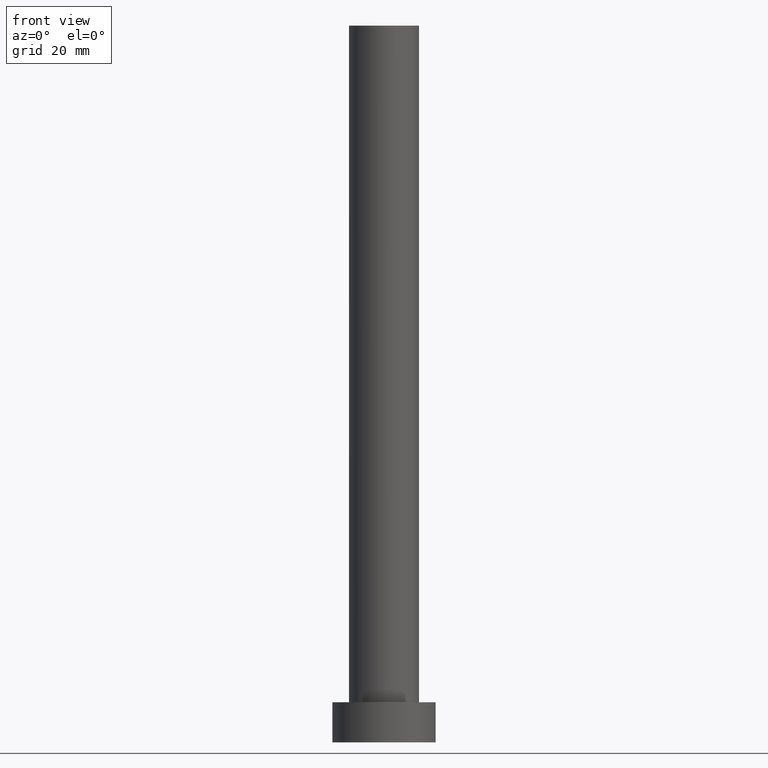
[diagram: clean part render]
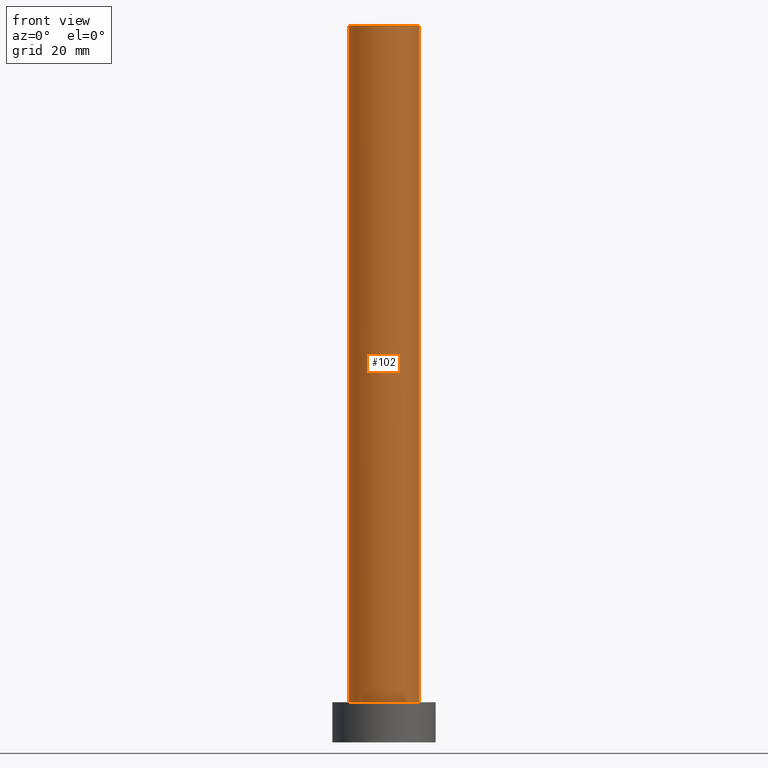
[diagram: same view with one face highlighted and labeled with its STEP entity id]
A machine part, front view. The second image highlights one B-rep face of the part: STEP entity #102.
In plain terms, the highlighted cylindrical surface (edge-blend (fillet) strip) has radius 6.1 mm, axis along (-0, -0, -1).
Its self-contained STEP definition (entity closure, byte-faithful):
#12 = DIRECTION ( 'NONE',  ( 0.000000000000000000, 0.000000000000000000, 1.000000000000000000 ) ) ;
#20 = VERTEX_POINT ( 'NONE', #127 ) ;
#25 = ORIENTED_EDGE ( 'NONE', *, *, #207, .F. ) ;
#27 = CIRCLE ( 'NONE', #93, 6.099999999999999645 ) ;
#29 = CARTESIAN_POINT ( 'NONE',  ( 6.099999999999999645, 7.470345474798854293E-16, 7.000000000000000000 ) ) ;
#39 = LINE ( 'NONE', #252, #175 ) ;
#44 = FACE_OUTER_BOUND ( 'NONE', #219, .T. ) ;
#48 = ORIENTED_EDGE ( 'NONE', *, *, #110, .T. ) ;
#51 = CARTESIAN_POINT ( 'NONE',  ( 0.000000000000000000, 0.000000000000000000, 7.000000000000000000 ) ) ;
#61 = AXIS2_PLACEMENT_3D ( 'NONE', #51, #12, #233 ) ;
#68 = VERTEX_POINT ( 'NONE', #29 ) ;
#76 = EDGE_CURVE ( 'NONE', #20, #68, #153, .T. ) ;
#84 = LINE ( 'NONE', #240, #86 ) ;
#86 = VECTOR ( 'NONE', #168, 1000.000000000000000 ) ;
#93 = AXIS2_PLACEMENT_3D ( 'NONE', #186, #146, #104 ) ;
#102 = ADVANCED_FACE ( 'NONE', ( #44 ), #200, .T. ) ;
#104 = DIRECTION ( 'NONE',  ( 1.000000000000000000, 0.000000000000000000, 0.000000000000000000 ) ) ;
#106 = CARTESIAN_POINT ( 'NONE',  ( 6.099999999999999645, 7.470345474798854293E-16, 125.0000000000000000 ) ) ;
#109 = CARTESIAN_POINT ( 'NONE',  ( 0.000000000000000000, 0.000000000000000000, 125.0000000000000000 ) ) ;
#110 = EDGE_CURVE ( 'NONE', #165, #20, #39, .T. ) ;
#119 = DIRECTION ( 'NONE',  ( -0.000000000000000000, -0.000000000000000000, -1.000000000000000000 ) ) ;
#127 = CARTESIAN_POINT ( 'NONE',  ( -6.099999999999999645, 0.000000000000000000, 7.000000000000000000 ) ) ;
#137 = DIRECTION ( 'NONE',  ( -0.000000000000000000, -0.000000000000000000, -1.000000000000000000 ) ) ;
#143 = DIRECTION ( 'NONE',  ( -1.000000000000000000, 0.000000000000000000, 0.000000000000000000 ) ) ;
#144 = ORIENTED_EDGE ( 'NONE', *, *, #76, .T. ) ;
#146 = DIRECTION ( 'NONE',  ( 0.000000000000000000, 0.000000000000000000, 1.000000000000000000 ) ) ;
#153 = CIRCLE ( 'NONE', #61, 6.099999999999999645 ) ;
#165 = VERTEX_POINT ( 'NONE', #177 ) ;
#168 = DIRECTION ( 'NONE',  ( -0.000000000000000000, -0.000000000000000000, -1.000000000000000000 ) ) ;
#175 = VECTOR ( 'NONE', #137, 1000.000000000000000 ) ;
#177 = CARTESIAN_POINT ( 'NONE',  ( -6.099999999999999645, 0.000000000000000000, 125.0000000000000000 ) ) ;
#186 = CARTESIAN_POINT ( 'NONE',  ( 0.000000000000000000, 0.000000000000000000, 125.0000000000000000 ) ) ;
#196 = VERTEX_POINT ( 'NONE', #106 ) ;
#200 = CYLINDRICAL_SURFACE ( 'NONE', #203, 6.099999999999999645 ) ;
#203 = AXIS2_PLACEMENT_3D ( 'NONE', #109, #119, #143 ) ;
#207 = EDGE_CURVE ( 'NONE', #165, #196, #27, .T. ) ;
#214 = ORIENTED_EDGE ( 'NONE', *, *, #227, .F. ) ;
#219 = EDGE_LOOP ( 'NONE', ( #214, #25, #48, #144 ) ) ;
#227 = EDGE_CURVE ( 'NONE', #196, #68, #84, .T. ) ;
#233 = DIRECTION ( 'NONE',  ( 1.000000000000000000, 0.000000000000000000, 0.000000000000000000 ) ) ;
#240 = CARTESIAN_POINT ( 'NONE',  ( 6.099999999999999645, 7.470345474798854293E-16, 125.0000000000000000 ) ) ;
#252 = CARTESIAN_POINT ( 'NONE',  ( -6.099999999999999645, 0.000000000000000000, 125.0000000000000000 ) ) ;